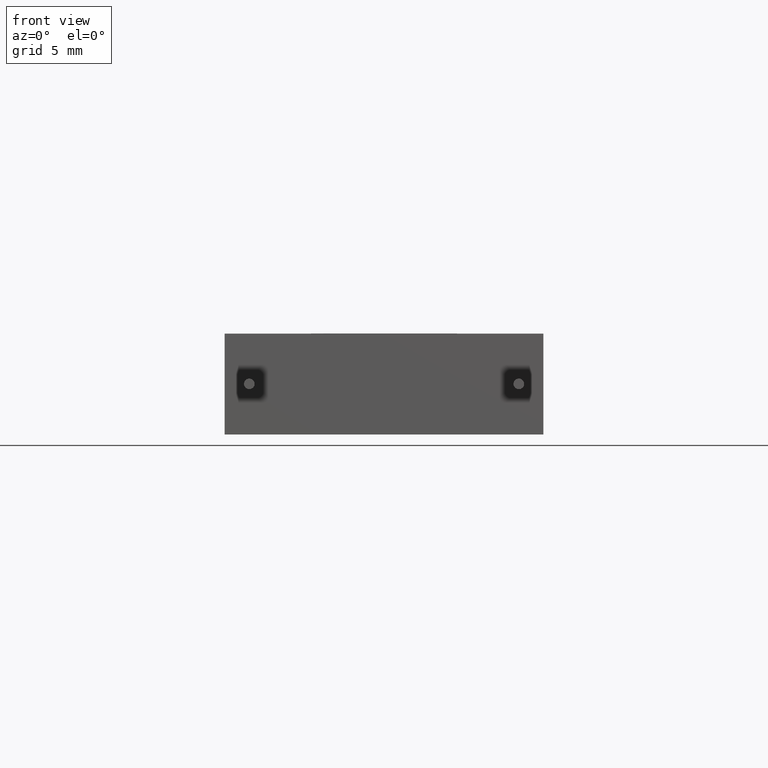
[diagram: clean part render]
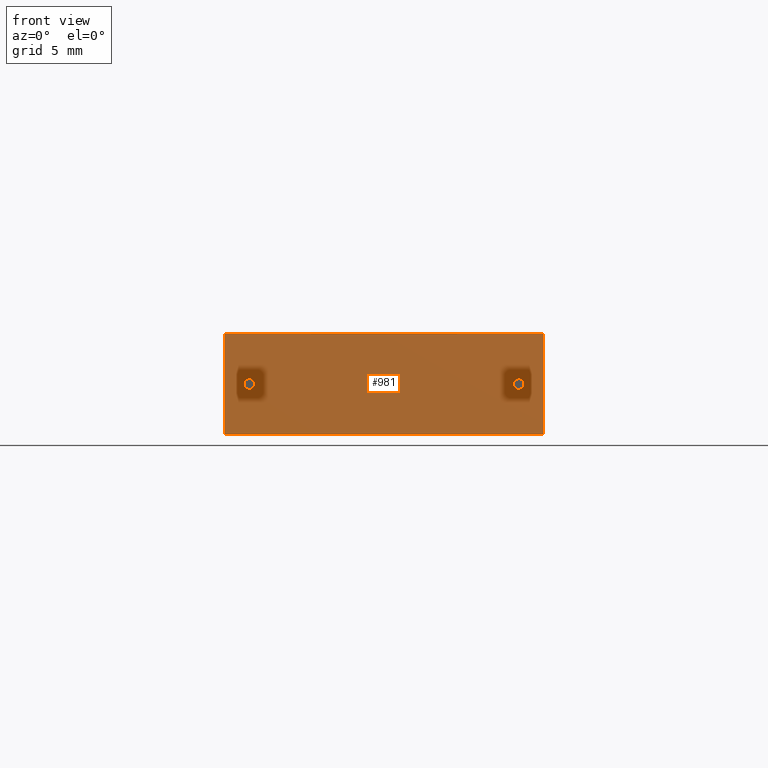
[diagram: same view with one face highlighted and labeled with its STEP entity id]
A machine part, front view. The second image highlights one B-rep face of the part: STEP entity #981.
In plain terms, the highlighted planar face has unit normal (0, 1, 0).
Its self-contained STEP definition (entity closure, byte-faithful):
#29 = ORIENTED_EDGE ( 'NONE', *, *, #1117, .T. ) ;
#34 = CARTESIAN_POINT ( 'NONE',  ( 22.15000000000000200, 0.0000000000000000000, 3.800000000000000300 ) ) ;
#40 = DIRECTION ( 'NONE',  ( 0.0000000000000000000, 0.0000000000000000000, 1.000000000000000000 ) ) ;
#50 = AXIS2_PLACEMENT_3D ( 'NONE', #953, #172, #40 ) ;
#61 = CARTESIAN_POINT ( 'NONE',  ( 22.15000000000000200, 0.0000000000000000000, 4.200000000000000200 ) ) ;
#98 = VECTOR ( 'NONE', #399, 1000.000000000000000 ) ;
#104 = DIRECTION ( 'NONE',  ( 0.0000000000000000000, -0.0000000000000000000, 1.000000000000000000 ) ) ;
#136 = VECTOR ( 'NONE', #682, 1000.000000000000000 ) ;
#150 = DIRECTION ( 'NONE',  ( -0.0000000000000000000, -1.000000000000000000, -0.0000000000000000000 ) ) ;
#153 = ORIENTED_EDGE ( 'NONE', *, *, #1522, .F. ) ;
#172 = DIRECTION ( 'NONE',  ( -0.0000000000000000000, -1.000000000000000000, -0.0000000000000000000 ) ) ;
#220 = DIRECTION ( 'NONE',  ( 0.0000000000000000000, 0.0000000000000000000, -1.000000000000000000 ) ) ;
#224 = CARTESIAN_POINT ( 'NONE',  ( 0.0000000000000000000, 0.0000000000000000000, 7.599999999999999600 ) ) ;
#304 = DIRECTION ( 'NONE',  ( 1.000000000000000000, 0.0000000000000000000, 0.0000000000000000000 ) ) ;
#363 = VERTEX_POINT ( 'NONE', #2468 ) ;
#399 = DIRECTION ( 'NONE',  ( -0.0000000000000000000, -0.0000000000000000000, -1.000000000000000000 ) ) ;
#478 = CARTESIAN_POINT ( 'NONE',  ( 0.0000000000000000000, 0.0000000000000000000, 7.599999999999999600 ) ) ;
#514 = ORIENTED_EDGE ( 'NONE', *, *, #1393, .F. ) ;
#519 = CARTESIAN_POINT ( 'NONE',  ( 1.849999999999999200, 0.0000000000000000000, 3.800000000000000300 ) ) ;
#565 = FACE_OUTER_BOUND ( 'NONE', #2157, .T. ) ;
#582 = VERTEX_POINT ( 'NONE', #831 ) ;
#620 = ORIENTED_EDGE ( 'NONE', *, *, #1650, .T. ) ;
#629 = EDGE_CURVE ( 'NONE', #1514, #2394, #2433, .T. ) ;
#633 = EDGE_CURVE ( 'NONE', #2083, #2394, #1345, .T. ) ;
#682 = DIRECTION ( 'NONE',  ( -0.0000000000000000000, -0.0000000000000000000, -1.000000000000000000 ) ) ;
#688 = VERTEX_POINT ( 'NONE', #61 ) ;
#737 = ORIENTED_EDGE ( 'NONE', *, *, #633, .F. ) ;
#738 = CIRCLE ( 'NONE', #50, 0.4000000000000001900 ) ;
#768 = AXIS2_PLACEMENT_3D ( 'NONE', #519, #150, #1113 ) ;
#777 = CARTESIAN_POINT ( 'NONE',  ( 24.00000000000000000, 0.0000000000000000000, 0.0000000000000000000 ) ) ;
#831 = CARTESIAN_POINT ( 'NONE',  ( 0.0000000000000000000, 0.0000000000000000000, 7.599999999999999600 ) ) ;
#858 = ORIENTED_EDGE ( 'NONE', *, *, #629, .T. ) ;
#866 = CARTESIAN_POINT ( 'NONE',  ( 0.0000000000000000000, 0.0000000000000000000, 0.0000000000000000000 ) ) ;
#922 = CIRCLE ( 'NONE', #768, 0.4000000000000001900 ) ;
#953 = CARTESIAN_POINT ( 'NONE',  ( 1.849999999999999200, 0.0000000000000000000, 3.800000000000000300 ) ) ;
#965 = VERTEX_POINT ( 'NONE', #1597 ) ;
#981 = ADVANCED_FACE ( 'NONE', ( #1341, #565, #2195 ), #2414, .F. ) ;
#1009 = AXIS2_PLACEMENT_3D ( 'NONE', #34, #1226, #1200 ) ;
#1029 = EDGE_LOOP ( 'NONE', ( #1467, #620 ) ) ;
#1038 = DIRECTION ( 'NONE',  ( -0.0000000000000000000, 1.000000000000000000, -0.0000000000000000000 ) ) ;
#1046 = CARTESIAN_POINT ( 'NONE',  ( 24.00000000000000000, 0.0000000000000000000, 7.599999999999999600 ) ) ;
#1113 = DIRECTION ( 'NONE',  ( 0.0000000000000000000, 0.0000000000000000000, 1.000000000000000000 ) ) ;
#1117 = EDGE_CURVE ( 'NONE', #582, #1514, #1619, .T. ) ;
#1180 = VECTOR ( 'NONE', #304, 1000.000000000000000 ) ;
#1200 = DIRECTION ( 'NONE',  ( 0.0000000000000000000, 0.0000000000000000000, -1.000000000000000000 ) ) ;
#1226 = DIRECTION ( 'NONE',  ( -0.0000000000000000000, 1.000000000000000000, -0.0000000000000000000 ) ) ;
#1298 = CARTESIAN_POINT ( 'NONE',  ( 0.0000000000000000000, 0.0000000000000000000, 0.0000000000000000000 ) ) ;
#1310 = CARTESIAN_POINT ( 'NONE',  ( 1.849999999999999200, 0.0000000000000000000, 3.399999999999999900 ) ) ;
#1341 = FACE_BOUND ( 'NONE', #1029, .T. ) ;
#1345 = LINE ( 'NONE', #1046, #136 ) ;
#1380 = CARTESIAN_POINT ( 'NONE',  ( 22.15000000000000200, 0.0000000000000000000, 3.800000000000000300 ) ) ;
#1393 = EDGE_CURVE ( 'NONE', #582, #2083, #2347, .T. ) ;
#1415 = EDGE_LOOP ( 'NONE', ( #153, #1849 ) ) ;
#1419 = CIRCLE ( 'NONE', #1009, 0.4000000000000006300 ) ;
#1436 = DIRECTION ( 'NONE',  ( 0.0000000000000000000, 1.000000000000000000, 0.0000000000000000000 ) ) ;
#1467 = ORIENTED_EDGE ( 'NONE', *, *, #1863, .T. ) ;
#1504 = VECTOR ( 'NONE', #2188, 1000.000000000000000 ) ;
#1514 = VERTEX_POINT ( 'NONE', #1298 ) ;
#1522 = EDGE_CURVE ( 'NONE', #363, #2387, #922, .T. ) ;
#1597 = CARTESIAN_POINT ( 'NONE',  ( 22.15000000000000200, 0.0000000000000000000, 3.399999999999999900 ) ) ;
#1619 = LINE ( 'NONE', #224, #98 ) ;
#1643 = CARTESIAN_POINT ( 'NONE',  ( 0.0000000000000000000, 0.0000000000000000000, 7.599999999999999600 ) ) ;
#1650 = EDGE_CURVE ( 'NONE', #965, #688, #1419, .T. ) ;
#1849 = ORIENTED_EDGE ( 'NONE', *, *, #1977, .F. ) ;
#1863 = EDGE_CURVE ( 'NONE', #688, #965, #2181, .T. ) ;
#1931 = AXIS2_PLACEMENT_3D ( 'NONE', #1643, #1436, #104 ) ;
#1936 = AXIS2_PLACEMENT_3D ( 'NONE', #1380, #1038, #220 ) ;
#1977 = EDGE_CURVE ( 'NONE', #2387, #363, #738, .T. ) ;
#2083 = VERTEX_POINT ( 'NONE', #2344 ) ;
#2157 = EDGE_LOOP ( 'NONE', ( #858, #737, #514, #29 ) ) ;
#2181 = CIRCLE ( 'NONE', #1936, 0.4000000000000006300 ) ;
#2188 = DIRECTION ( 'NONE',  ( 1.000000000000000000, 0.0000000000000000000, 0.0000000000000000000 ) ) ;
#2195 = FACE_BOUND ( 'NONE', #1415, .T. ) ;
#2344 = CARTESIAN_POINT ( 'NONE',  ( 24.00000000000000000, 0.0000000000000000000, 7.599999999999999600 ) ) ;
#2347 = LINE ( 'NONE', #478, #1504 ) ;
#2387 = VERTEX_POINT ( 'NONE', #1310 ) ;
#2394 = VERTEX_POINT ( 'NONE', #777 ) ;
#2414 = PLANE ( 'NONE',  #1931 ) ;
#2433 = LINE ( 'NONE', #866, #1180 ) ;
#2468 = CARTESIAN_POINT ( 'NONE',  ( 1.849999999999999200, 0.0000000000000000000, 4.200000000000000200 ) ) ;